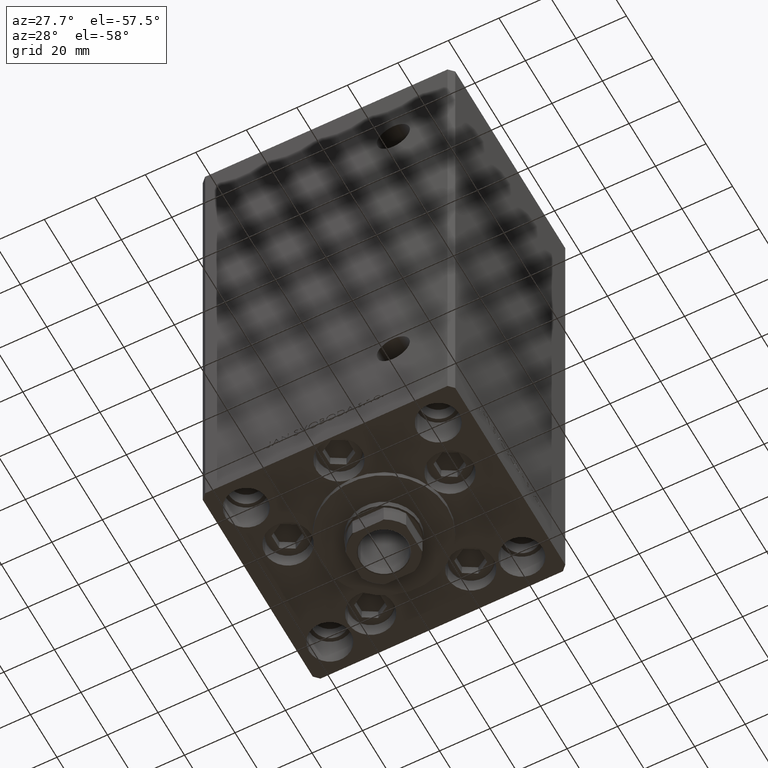
[diagram: clean part render]
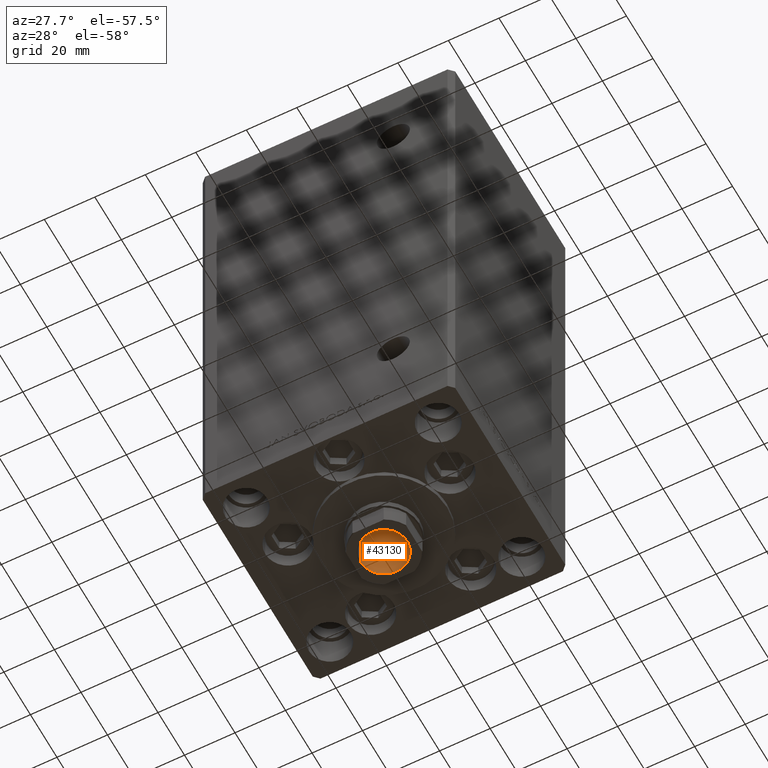
[diagram: same view with one face highlighted and labeled with its STEP entity id]
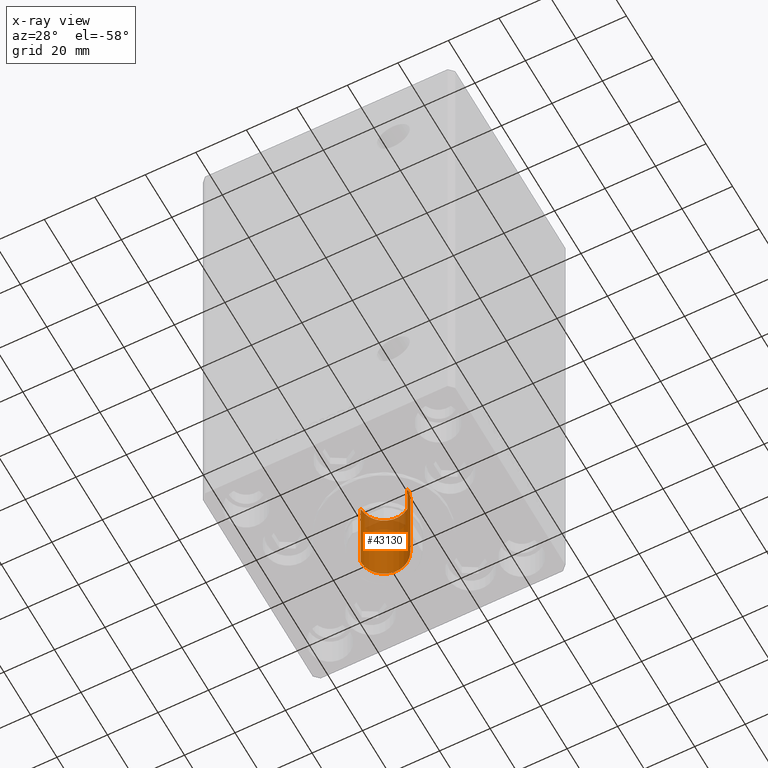
[diagram: x-ray of the same camera — body ghosted, the highlighted face saturated]
A machine part, auxiliary view. The second image highlights one B-rep face of the part: STEP entity #43130.
The next image is the same camera in x-ray: the body ghosted, the highlighted face saturated — about 18% of this face is hidden behind the body in this view.
In plain terms, the highlighted cylindrical surface (edge-blend (fillet) strip) has radius 9.25 mm, axis along (0, 0, -1).
Its self-contained STEP definition (entity closure, byte-faithful):
#686 = VERTEX_POINT ( 'NONE', #26188 ) ;
#3366 = CARTESIAN_POINT ( 'NONE',  ( -9.249999999999994671, 1.132798289211300909E-15, 150.2500000000000000 ) ) ;
#7399 = CARTESIAN_POINT ( 'NONE',  ( 0.000000000000000000, 0.000000000000000000, 185.2500000000000000 ) ) ;
#7699 = LINE ( 'NONE', #29834, #45678 ) ;
#10161 = ORIENTED_EDGE ( 'NONE', *, *, #44055, .F. ) ;
#11740 = CIRCLE ( 'NONE', #18232, 9.249999999999994671 ) ;
#12749 = DIRECTION ( 'NONE',  ( -0.000000000000000000, -0.000000000000000000, 1.000000000000000000 ) ) ;
#13068 = CARTESIAN_POINT ( 'NONE',  ( 9.249999999999994671, 0.000000000000000000, 150.2500000000000000 ) ) ;
#13713 = EDGE_LOOP ( 'NONE', ( #27314, #10161, #17183, #38749 ) ) ;
#14797 = CYLINDRICAL_SURFACE ( 'NONE', #26360, 9.249999999999996447 ) ;
#15274 = DIRECTION ( 'NONE',  ( 1.000000000000000000, 0.000000000000000000, 0.000000000000000000 ) ) ;
#17183 = ORIENTED_EDGE ( 'NONE', *, *, #24920, .T. ) ;
#18038 = DIRECTION ( 'NONE',  ( -0.000000000000000000, -0.000000000000000000, 1.000000000000000000 ) ) ;
#18232 = AXIS2_PLACEMENT_3D ( 'NONE', #28013, #18038, #47312 ) ;
#23938 = DIRECTION ( 'NONE',  ( 0.000000000000000000, 0.000000000000000000, 1.000000000000000000 ) ) ;
#24920 = EDGE_CURVE ( 'NONE', #49487, #36782, #47527, .T. ) ;
#24963 = EDGE_CURVE ( 'NONE', #36782, #686, #40567, .T. ) ;
#25137 = CARTESIAN_POINT ( 'NONE',  ( 9.249999999999996447, 0.000000000000000000, 184.9499999999999602 ) ) ;
#25984 = VECTOR ( 'NONE', #12749, 1000.000000000000000 ) ;
#26188 = CARTESIAN_POINT ( 'NONE',  ( -9.249999999999996447, 1.132798289211301304E-15, 184.9499999999999602 ) ) ;
#26360 = AXIS2_PLACEMENT_3D ( 'NONE', #7399, #45264, #15274 ) ;
#27314 = ORIENTED_EDGE ( 'NONE', *, *, #36225, .F. ) ;
#28013 = CARTESIAN_POINT ( 'NONE',  ( 0.000000000000000000, 0.000000000000000000, 150.2500000000000000 ) ) ;
#29834 = CARTESIAN_POINT ( 'NONE',  ( -9.249999999999996447, 1.132798289211301304E-15, 185.2500000000000000 ) ) ;
#32300 = DIRECTION ( 'NONE',  ( 1.000000000000000000, 0.000000000000000000, 0.000000000000000000 ) ) ;
#33194 = VERTEX_POINT ( 'NONE', #3366 ) ;
#33263 = AXIS2_PLACEMENT_3D ( 'NONE', #40414, #23938, #32300 ) ;
#36225 = EDGE_CURVE ( 'NONE', #33194, #686, #7699, .T. ) ;
#36782 = VERTEX_POINT ( 'NONE', #25137 ) ;
#37937 = DIRECTION ( 'NONE',  ( -0.000000000000000000, -0.000000000000000000, 1.000000000000000000 ) ) ;
#38749 = ORIENTED_EDGE ( 'NONE', *, *, #24963, .T. ) ;
#40414 = CARTESIAN_POINT ( 'NONE',  ( 0.000000000000000000, 0.000000000000000000, 184.9499999999999602 ) ) ;
#40567 = CIRCLE ( 'NONE', #33263, 9.249999999999996447 ) ;
#43130 = ADVANCED_FACE ( 'NONE', ( #49584 ), #14797, .F. ) ;
#44055 = EDGE_CURVE ( 'NONE', #49487, #33194, #11740, .T. ) ;
#45264 = DIRECTION ( 'NONE',  ( -0.000000000000000000, -0.000000000000000000, 1.000000000000000000 ) ) ;
#45678 = VECTOR ( 'NONE', #37937, 1000.000000000000000 ) ;
#47283 = CARTESIAN_POINT ( 'NONE',  ( 9.249999999999996447, 0.000000000000000000, 185.2500000000000000 ) ) ;
#47312 = DIRECTION ( 'NONE',  ( 1.000000000000000000, 0.000000000000000000, 0.000000000000000000 ) ) ;
#47527 = LINE ( 'NONE', #47283, #25984 ) ;
#49487 = VERTEX_POINT ( 'NONE', #13068 ) ;
#49584 = FACE_OUTER_BOUND ( 'NONE', #13713, .T. ) ;